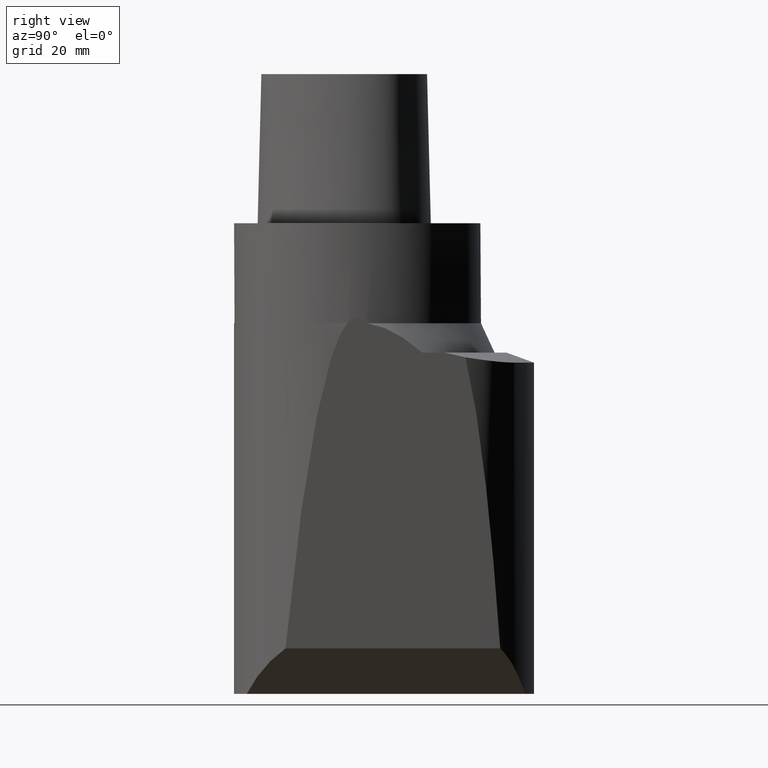
[diagram: clean part render]
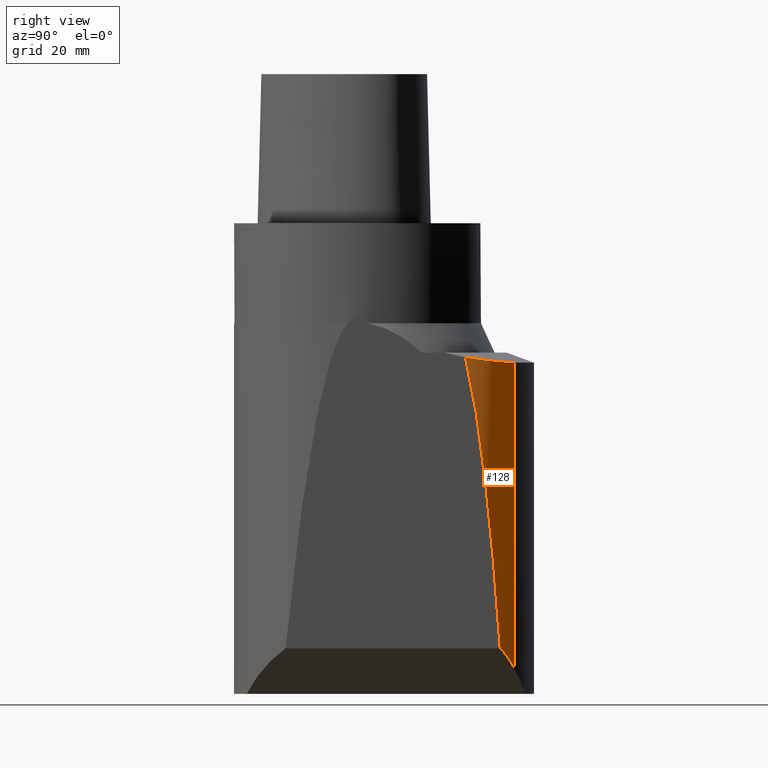
[diagram: same view with one face highlighted and labeled with its STEP entity id]
A machine part, right view. The second image highlights one B-rep face of the part: STEP entity #128.
In plain terms, the highlighted cylindrical surface (partial cylindrical patch) has radius 20 mm, axis along (-0, -0, -1).
Its self-contained STEP definition (entity closure, byte-faithful):
#128=ADVANCED_FACE('240[2]',(#352),#353,.T.);
#135=EDGE_CURVE('240[2]',#363,#364,#365,.T.);
#194=EDGE_CURVE('240[2]',#363,#448,#449,.T.);
#226=EDGE_CURVE('240[2]',#364,#487,#488,.T.);
#302=EDGE_CURVE('240[2]',#487,#448,#579,.T.);
#352=FACE_OUTER_BOUND('',#647,.T.);
#353=CYLINDRICAL_SURFACE('',#648,20.0000000000008);
#363=VERTEX_POINT('',#661);
#364=VERTEX_POINT('',#662);
#365=ELLIPSE('',#663,286.711740524092,20.0000000000008);
#448=VERTEX_POINT('',#814);
#449=B_SPLINE_CURVE_WITH_KNOTS('',3,(#815,#816,#817,#818,#819,#820,#821,#822,#823,#824,#825,#826),.UNSPECIFIED.,.F.,.F.,(4,2,2,2,2,4),(10.1958603050907,13.2037248161847,16.4181363730868,19.6325479299889,22.846959486891,26.0613710437931),.UNSPECIFIED.);
#487=VERTEX_POINT('',#916);
#488=ELLIPSE('',#917,28.284271247463,20.0000000000008);
#579=LINE('',#1232,#1233);
#647=EDGE_LOOP('',(#1257,#1258,#1259,#1260));
#648=AXIS2_PLACEMENT_3D('',#1261,#1262,#1263);
#661=CARTESIAN_POINT('',(30.7873370053103,29.4893461661661,-34.191555453672));
#662=CARTESIAN_POINT('',(25.5980400135489,38.3840670495879,-108.401959841843));
#663=AXIS2_PLACEMENT_3D('',#1274,#1275,#1276);
#814=CARTESIAN_POINT('',(20.7000000000008,41.9563511847621,-35.5477914550084));
#815=CARTESIAN_POINT('',(30.787309271668,29.4893391586681,-34.191551843872));
#816=CARTESIAN_POINT('',(30.5118238686528,30.4928298941378,-34.3600526882046));
#817=CARTESIAN_POINT('',(30.1613457885001,31.4603339052903,-34.5110816359745));
#818=CARTESIAN_POINT('',(29.3215523459816,33.3369167185307,-34.7850189233933));
#819=CARTESIAN_POINT('',(28.7915966988933,34.3106131441656,-34.9159036063427));
#820=CARTESIAN_POINT('',(27.5488679145143,36.1854099776824,-35.1441318249864));
#821=CARTESIAN_POINT('',(26.836117557228,37.0865200751777,-35.2415198015657));
#822=CARTESIAN_POINT('',(25.2649187219632,38.7526340891577,-35.3966796740192));
#823=CARTESIAN_POINT('',(24.4054770089886,39.5186797330898,-35.4545682196224));
#824=CARTESIAN_POINT('',(22.5987203850591,40.8741175520507,-35.5301275837307));
#825=CARTESIAN_POINT('',(21.6513789408892,41.4634747460371,-35.5477914550083));
#826=CARTESIAN_POINT('',(20.7000000000008,41.9563511847621,-35.5477914550084));
#916=CARTESIAN_POINT('',(20.7000000000011,41.956351184762,-113.299999855391));
#917=AXIS2_PLACEMENT_3D('',#1394,#1395,#1396);
#1232=CARTESIAN_POINT('',(20.7000000000011,41.956351184762,-277.139999808573));
#1233=VECTOR('',#1533,1.0);
#1257=ORIENTED_EDGE('',*,*,#302,.T.);
#1258=ORIENTED_EDGE('',*,*,#194,.F.);
#1259=ORIENTED_EDGE('',*,*,#135,.T.);
#1260=ORIENTED_EDGE('',*,*,#226,.T.);
#1261=CARTESIAN_POINT('',(11.5000000000002,24.197972880423,-277.139999808573));
#1262=DIRECTION('',(-6.12323399573676E-017,-1.22464679914735E-016,-1.0));
#1263=DIRECTION('',(1.0,-2.4492935982947E-016,-6.12323399573676E-017));
#1274=CARTESIAN_POINT('',(11.5000000000002,24.197972880423,-310.013324949379));
#1275=DIRECTION('',(-0.997564050259824,1.30709066338571E-016,0.0697564737441235));
#1276=DIRECTION('',(0.0697564737441235,1.05080953651407E-016,0.997564050259824));
#1394=CARTESIAN_POINT('',(11.5000000000002,24.197972880423,-122.499999855392));
#1395=DIRECTION('',(-0.707106781186548,1.73191211247099E-016,0.707106781186548));
#1396=DIRECTION('',(0.707106781186547,-8.65956056235494E-017,0.707106781186547));
#1533=DIRECTION('',(6.12323399573677E-017,1.22464679914735E-016,1.0));